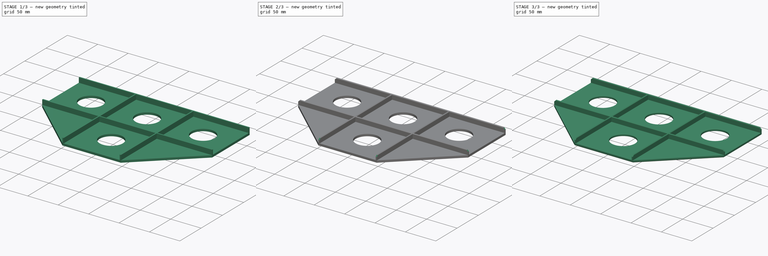
[diagram: build sequence overview — one tinted view per stage of 3, left to right]
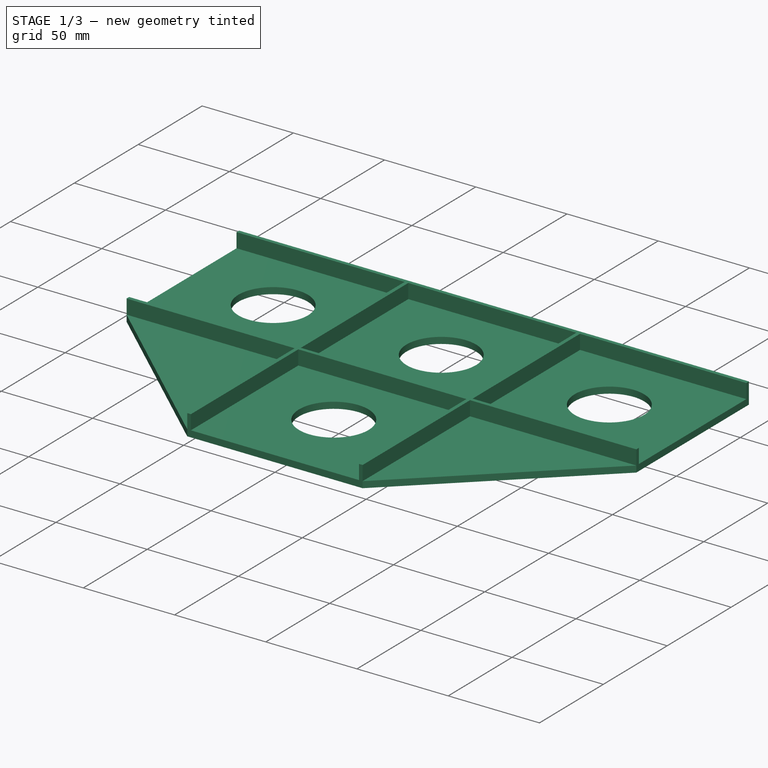
[diagram: stage 1 of 3 — iso view after this stage's code; geometry added in this stage tinted green]
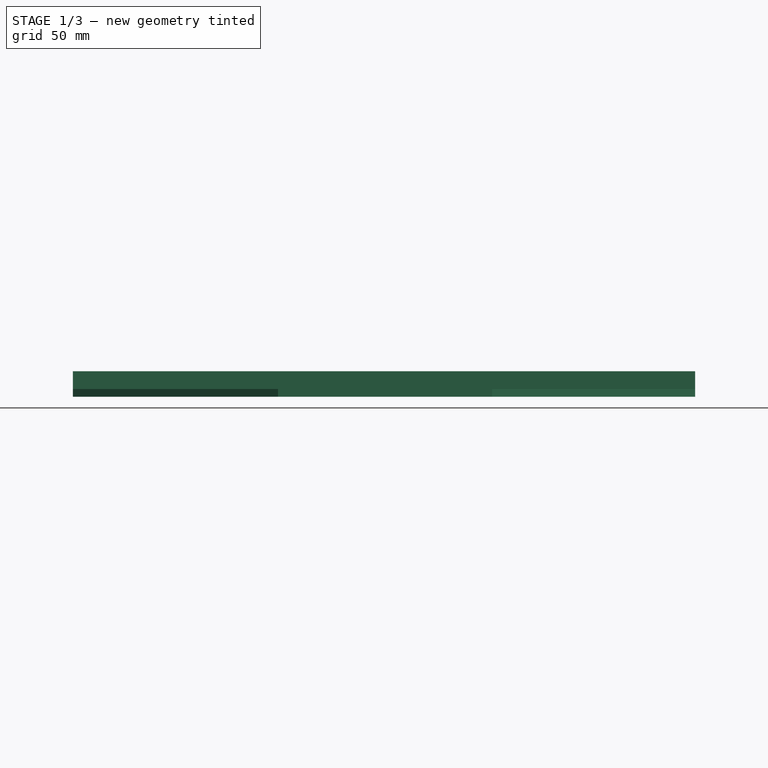
[diagram: stage 1 of 3 — front view after this stage's code; geometry added in this stage tinted green]
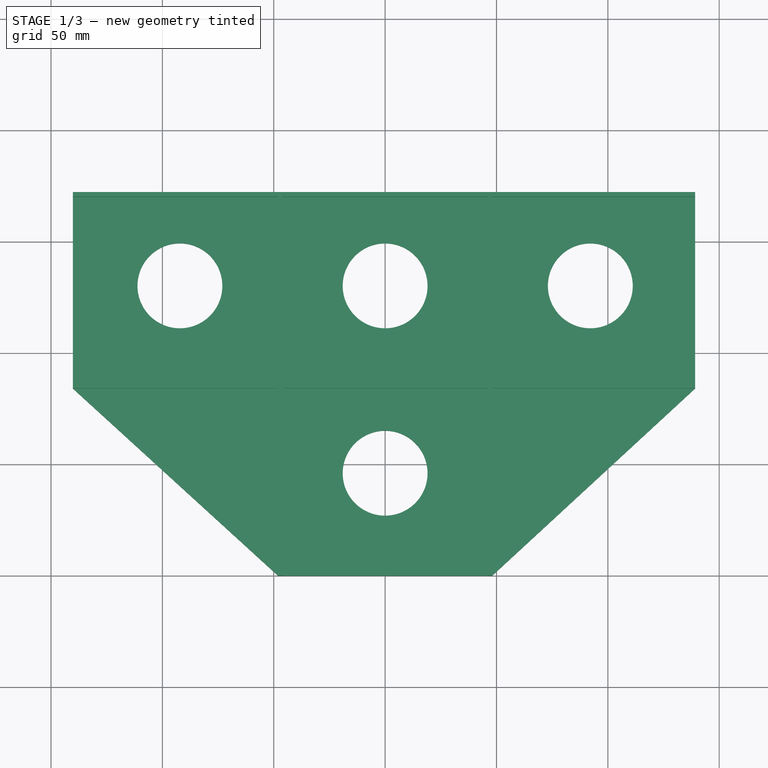
[diagram: stage 1 of 3 — top view after this stage's code; geometry added in this stage tinted green]
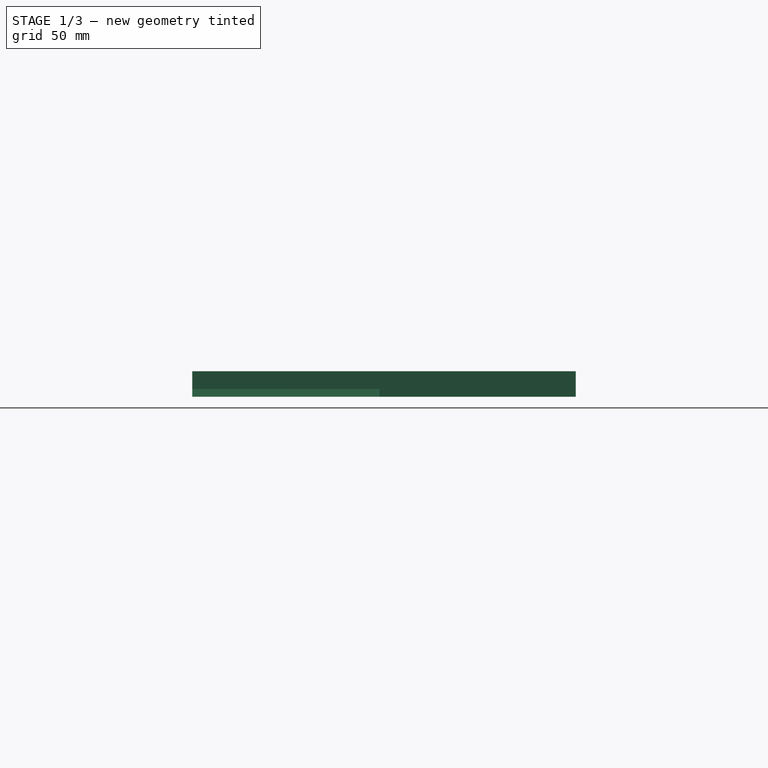
[diagram: stage 1 of 3 — right view after this stage's code; geometry added in this stage tinted green]
FCSTD DOCUMENT  (FreeCAD 0.21R33771 (Git))
Label: LasagnaGridv2
License: All rights reserved
LicenseURL: http://en.wikipedia.org/wiki/All_rights_reserved
objects: PartDesign::Chamfer×3, Sketcher::SketchObject×2, PartDesign::Pad×2, Spreadsheet::Sheet×1, PartDesign::Fillet×1, PartDesign::Body×1, App::Part×1
note: 15 computed .brp shape members not serialized (recipe doc carries the construction recipe); baked Part::Feature solids carry a one-line shape summary decoded from their .brp

FEATURE [Spreadsheet::Sheet] Spreadsheet  label="p"
FEATURE [Sketcher::SketchObject] Sketch001
  FullyConstrained = true
  MapMode = 5
  Support = -> [XY_Plane001]
  sketch-geometry (16):
    g0: LineSegment StartX=139.2 StartY=86.09 StartZ=0 EndX=139.2 EndY=84.09 EndZ=0
    g1: LineSegment StartX=48.0667 StartY=-7e-16 StartZ=0 EndX=46.0667 EndY=-7e-16 EndZ=0
    g2: LineSegment StartX=-46.0667 StartY=0 StartZ=0 EndX=-48.0667 EndY=0 EndZ=0
    g3: LineSegment StartX=-140.2 StartY=84.09 StartZ=0 EndX=-140.2 EndY=86.09 EndZ=0
    g4: LineSegment StartX=-140.2 StartY=170.18 StartZ=0 EndX=-140.2 EndY=172.18 EndZ=0
    g5: LineSegment StartX=-140.2 StartY=172.18 StartZ=0 EndX=139.2 EndY=172.18 EndZ=0
    g6: LineSegment StartX=139.2 StartY=172.18 StartZ=0 EndX=139.2 EndY=170.18 EndZ=0
    g7: LineSegment StartX=-140.2 StartY=170.18 StartZ=0 EndX=-140.2 EndY=86.09 EndZ=0
    g8: LineSegment StartX=-140.2 StartY=84.09 StartZ=0 EndX=-48.0667 EndY=0 EndZ=0
    g9: LineSegment StartX=-46.0667 StartY=0 StartZ=0 EndX=46.0667 EndY=-7e-16 EndZ=0
    g10: LineSegment StartX=48.0667 StartY=-7e-16 StartZ=0 EndX=139.2 EndY=84.09 EndZ=0
    g11: LineSegment StartX=139.2 StartY=86.09 StartZ=0 EndX=139.2 EndY=170.18 EndZ=0
    g12: Circle CenterX=-92.134 CenterY=130.201 CenterZ=0 NormalX=0 NormalY=0 NormalZ=1 AngleXU=0 Radius=19.05
    g13: Circle CenterX=92.134 CenterY=130.201 CenterZ=0 NormalX=0 NormalY=0 NormalZ=1 AngleXU=0 Radius=19.05
    g14: Circle CenterX=0 CenterY=130.201 CenterZ=0 NormalX=0 NormalY=0 NormalZ=1 AngleXU=0 Radius=19.05
    g15: Circle CenterX=0 CenterY=46.067 CenterZ=0 NormalX=0 NormalY=0 NormalZ=1 AngleXU=0 Radius=19.05
  constraints (48):
    c: Vertical(g0)
    c: Horizontal(g1)
    c: Horizontal(g2)
    c: Vertical(g3)
    c: DistanceX(g3,g0) = 279.4
    c: DistanceY(g3,g3) = 2
    c: DistanceY(g0,g0) = 2
    c: DistanceX(g2,g2) = 2
    c: DistanceX(g1,g1) = 2
    c: DistanceY(g2,g3) = 84.09
    c: DistanceY(g2,g-1) = 0
    c: DistanceX(g3,g2) = 92.1333
    c: DistanceX(g2,g-1) = 46.0667
    c: DistanceX(g-1,g1) = 46.0667
    c: Vertical(g4)
    c: Coincident(g4,g5)
    c: Horizontal(g5)
    c: Coincident(g5,g6)
    c: Vertical(g6)
    c: DistanceX(g5,g5) = 279.4
    c: DistanceY(g4,g4) = 2
    c: DistanceY(g6,g6) = 2
    c: DistanceX(g3,g4) = 0
    c: Coincident(g7,g4)
    c: Coincident(g7,g3)
    c: Coincident(g8,g3)
    c: Coincident(g8,g2)
    c: Coincident(g9,g2)
    c: Coincident(g9,g1)
    c: Coincident(g10,g1)
    c: Coincident(g10,g0)
    c: Coincident(g11,g0)
    c: Coincident(g11,g6)
    c: DistanceY(g11,g11) = 84.09
    c: DistanceY(g1,g-1) = 0
    c: DistanceY(g-1,g4) = 172.18
    c: PointOnObject(g14,g-2)
    c: PointOnObject(g15,g-2)
    c: Equal(g14,g15)
    c: Equal(g14,g13)
    c: Equal(g14,g12)
    c: Diameter(g14) = 38.1
    c: DistanceY(g12,g14) = 0
    c: DistanceY(g13,g14) = 0
    c: DistanceX(g12,g14) = 92.134
    c: DistanceX(g14,g13) = 92.134
    c: DistanceY(g-1,g15) = 46.067
    c: DistanceY(g15,g14) = 84.134
FEATURE [PartDesign::Pad] Pad
  Direction = (0,0,1)
  Length = 3.5
  Length2 = 10
  Profile = -> Sketch001
  ReferenceAxis = -> Sketch001 [N_Axis]
  Type = 0
FEATURE [Sketcher::SketchObject] Sketch
  FullyConstrained = true
  MapMode = 5
  Placement = pos=(0,0,3.5) rot=(0,0,1;0rad)
  Support = -> [Pad]
  sketch-geometry (24):
    g0: LineSegment StartX=-140.2 StartY=86.09 StartZ=0 EndX=-48.0666 EndY=86.09 EndZ=0
    g1: LineSegment StartX=139.2 StartY=86.09 StartZ=0 EndX=139.2 EndY=84.09 EndZ=0
    g2: LineSegment StartX=139.2 StartY=84.09 StartZ=0 EndX=48.0667 EndY=84.09 EndZ=0
    g3: LineSegment StartX=48.0667 StartY=84.09 StartZ=0 EndX=48.0667 EndY=0 EndZ=0
    g4: LineSegment StartX=48.0667 StartY=0 StartZ=0 EndX=46.0667 EndY=0 EndZ=0
    g5: LineSegment StartX=46.0667 StartY=0 StartZ=0 EndX=46.0667 EndY=84.09 EndZ=0
    g6: LineSegment StartX=46.0667 StartY=84.09 StartZ=0 EndX=-46.0667 EndY=84.09 EndZ=0
    g7: LineSegment StartX=-46.0667 StartY=84.09 StartZ=0 EndX=-46.0667 EndY=0 EndZ=0
    g8: LineSegment StartX=-46.0667 StartY=0 StartZ=0 EndX=-48.0667 EndY=0 EndZ=0
    g9: LineSegment StartX=-48.0667 StartY=0 StartZ=0 EndX=-48.0667 EndY=84.09 EndZ=0
    g10: LineSegment StartX=-48.0667 StartY=84.09 StartZ=0 EndX=-140.2 EndY=84.09 EndZ=0
    g11: LineSegment StartX=-140.2 StartY=84.09 StartZ=0 EndX=-140.2 EndY=86.09 EndZ=0
    g12: LineSegment StartX=-48.0666 StartY=86.09 StartZ=0 EndX=-48.0666 EndY=170.18 EndZ=0
    g13: LineSegment StartX=-48.0666 StartY=170.18 StartZ=0 EndX=-140.2 EndY=170.18 EndZ=0
    g14: LineSegment StartX=-140.2 StartY=170.18 StartZ=0 EndX=-140.2 EndY=172.18 EndZ=0
    g15: LineSegment StartX=-140.2 StartY=172.18 StartZ=0 EndX=139.2 EndY=172.18 EndZ=0
    g16: LineSegment StartX=139.2 StartY=172.18 StartZ=0 EndX=139.2 EndY=170.18 EndZ=0
    g17: LineSegment StartX=139.2 StartY=170.18 StartZ=0 EndX=48.0667 EndY=170.18 EndZ=0
    g18: LineSegment StartX=48.0667 StartY=170.18 StartZ=0 EndX=48.0667 EndY=86.09 EndZ=0
    g19: LineSegment StartX=-46.0667 StartY=170.18 StartZ=0 EndX=-46.0667 EndY=86.09 EndZ=0
    g20: LineSegment StartX=48.0667 StartY=86.09 StartZ=0 EndX=139.2 EndY=86.09 EndZ=0
    g21: LineSegment StartX=-46.0667 StartY=86.09 StartZ=0 EndX=46.0667 EndY=86.09 EndZ=0
    g22: LineSegment StartX=46.0667 StartY=86.09 StartZ=0 EndX=46.0667 EndY=170.18 EndZ=0
    g23: LineSegment StartX=46.0667 StartY=170.18 StartZ=0 EndX=-46.0667 EndY=170.18 EndZ=0
  constraints (72):
    c: Horizontal(g0)
    c: Coincident(g20,g1)
    c: Vertical(g1)
    c: Coincident(g1,g2)
    c: Horizontal(g2)
    c: Coincident(g2,g3)
    c: Vertical(g3)
    c: Horizontal(g4)
    c: Coincident(g4,g5)
    c: Vertical(g5)
    c: Coincident(g5,g6)
    c: Horizontal(g6)
    c: Coincident(g6,g7)
    c: Vertical(g7)
    c: Coincident(g7,g8)
    c: Horizontal(g8)
    c: Coincident(g8,g9)
    c: Vertical(g9)
    c: Coincident(g9,g10)
    c: Horizontal(g10)
    c: Coincident(g10,g11)
    c: Coincident(g11,g0)
    c: Vertical(g11)
    c: DistanceX(g0,g20) = 279.4
    c: DistanceY(g11,g11) = 2
    c: DistanceY(g1,g1) = 2
    c: DistanceY(g6,g0) = 2
    c: DistanceX(g8,g8) = 2
    c: DistanceX(g4,g4) = 2
    c: DistanceY(g8,g10) = 84.09
    c: DistanceY(g4,g5) = 84.09
    c: DistanceY(g7,g-1) = 0
    c: Coincident(g4,g3)
    c: DistanceX(g10,g8) = 92.1333
    c: DistanceX(g7,g-1) = 46.0667
    c: DistanceX(g-1,g4) = 46.0667
    c: Vertical(g12)
    c: Coincident(g12,g13)
    c: Horizontal(g13)
    c: Coincident(g13,g14)
    c: Vertical(g14)
    c: Coincident(g14,g15)
    c: Horizontal(g15)
    c: Coincident(g15,g16)
    c: Vertical(g16)
    c: Coincident(g16,g17)
    c: Horizontal(g17)
    c: Coincident(g17,g18)
    c: PointOnObject(g18,g0)
    c: Vertical(g18)
    c: Vertical(g19)
    c: Coincident(g0,g12)
    c: DistanceX(g15,g15) = 279.4
    c: DistanceX(g0,g0) = 92.1333
    c: DistanceX(g19,g-1) = 46.0667
    c: DistanceY(g14,g14) = 2
    c: DistanceY(g19,g12) = 0
    c: DistanceY(g16,g16) = 2
    c: DistanceY(g3,g3) = 84.09
    c: DistanceY(g19,g19) = 84.09
    c: Coincident(g20,g18)
    c: Coincident(g19,g21)
    c: Horizontal(g21)
    c: Coincident(g21,g22)
    c: Vertical(g22)
    c: Coincident(g22,g23)
    c: Coincident(g23,g19)
    c: Horizontal(g23)
    c: DistanceY(g6,g19) = 2
    c: DistanceX(g22,g17) = 2
    c: DistanceX(g-1,g21) = 46.0667
    c: DistanceX(g0,g13) = 0
FEATURE [PartDesign::Pad] Pad001
  BaseFeature = -> Pad
  Direction = (0,0,1)
  Length = 8
  Length2 = 10
  Profile = -> Sketch
  ReferenceAxis = -> Sketch [N_Axis]
  Type = 0
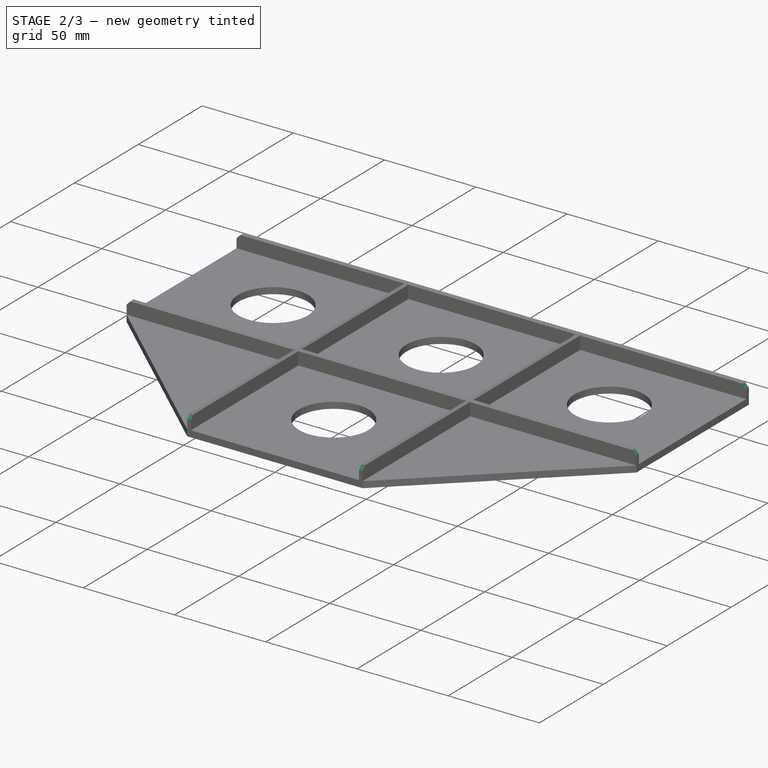
[diagram: stage 2 of 3 — iso view after this stage's code; geometry added in this stage tinted green]
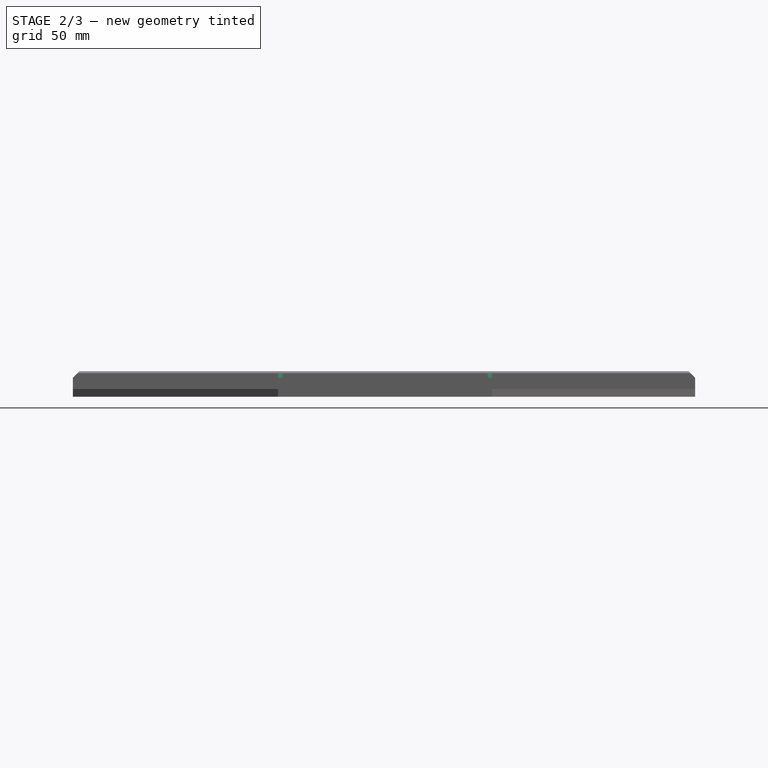
[diagram: stage 2 of 3 — front view after this stage's code; geometry added in this stage tinted green]
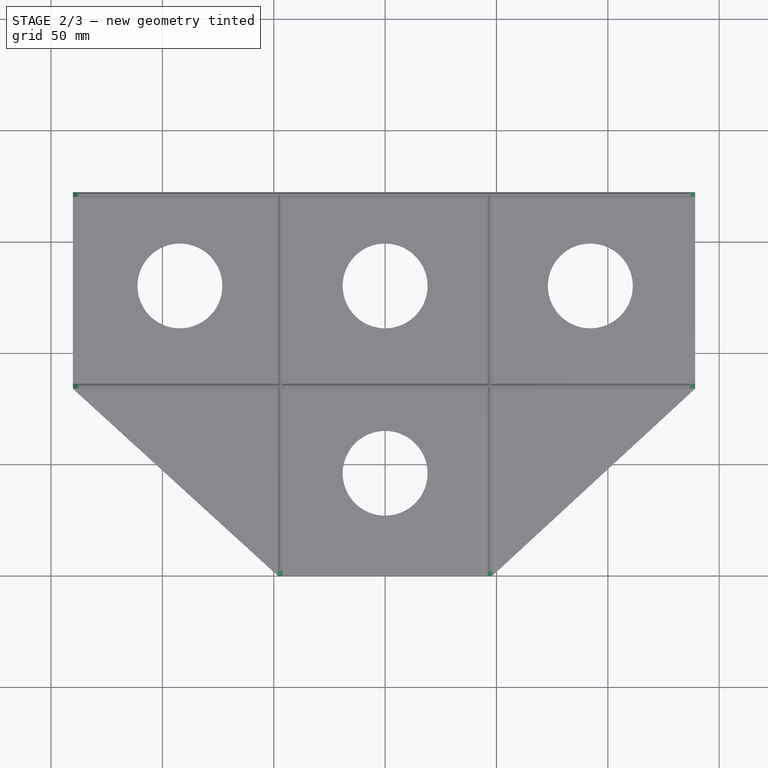
[diagram: stage 2 of 3 — top view after this stage's code; geometry added in this stage tinted green]
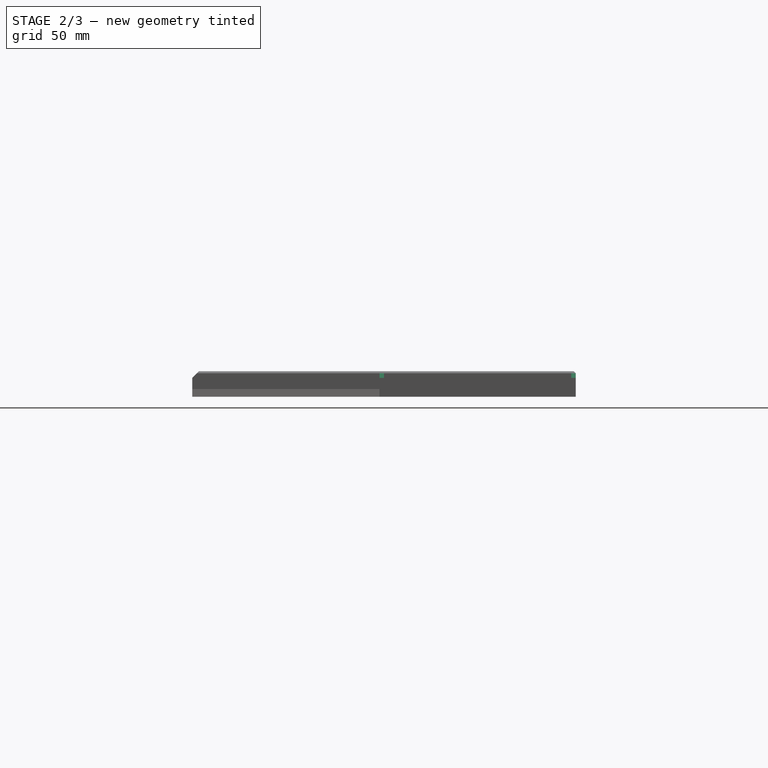
[diagram: stage 2 of 3 — right view after this stage's code; geometry added in this stage tinted green]
FEATURE [PartDesign::Chamfer] Chamfer
  Angle = 45
  Base = -> Pad001 [Edge69,Edge71,Edge60,Edge58,Edge68,Edge80,Edge79,Edge72,Edge73,Edge75,Edge76,Edge61,Edge62,Edge78,Edge67,Edge65,Edge81,Edge63]
  BaseFeature = -> Pad001
  ChamferType = 0
  FlipDirection = false
  Size = 0.9
  Size2 = 1
  SupportTransform = false
  UseAllEdges = false
FEATURE [PartDesign::Chamfer] Chamfer001
  Angle = 45
  Base = -> Chamfer [Edge15,Edge22,Edge26,Edge31,Edge4,Edge19]
  BaseFeature = -> Chamfer
  ChamferType = 0
  FlipDirection = false
  Size = 3
  Size2 = 1
  SupportTransform = false
  UseAllEdges = false
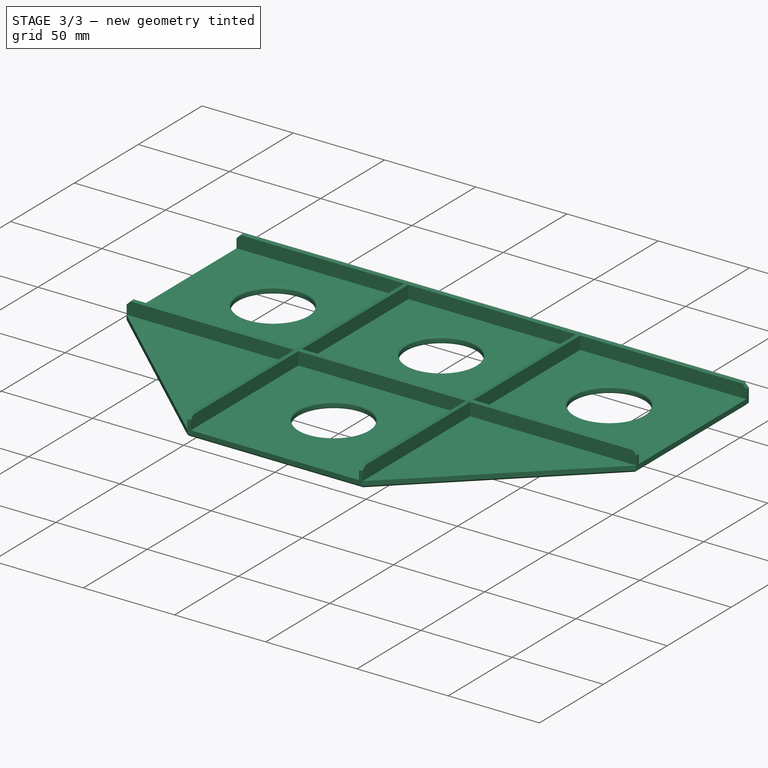
[diagram: stage 3 of 3 — iso view after this stage's code; geometry added in this stage tinted green]
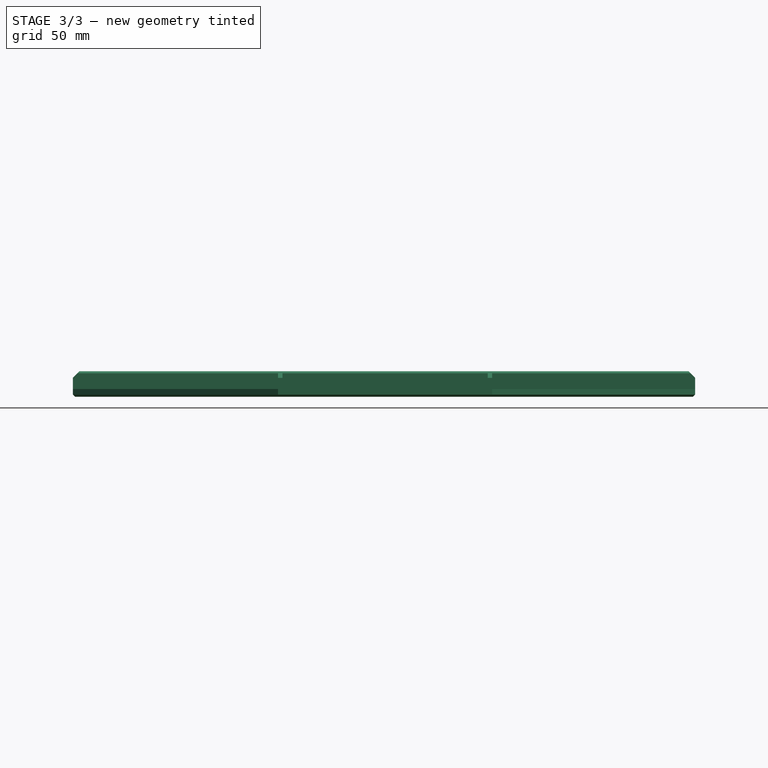
[diagram: stage 3 of 3 — front view after this stage's code; geometry added in this stage tinted green]
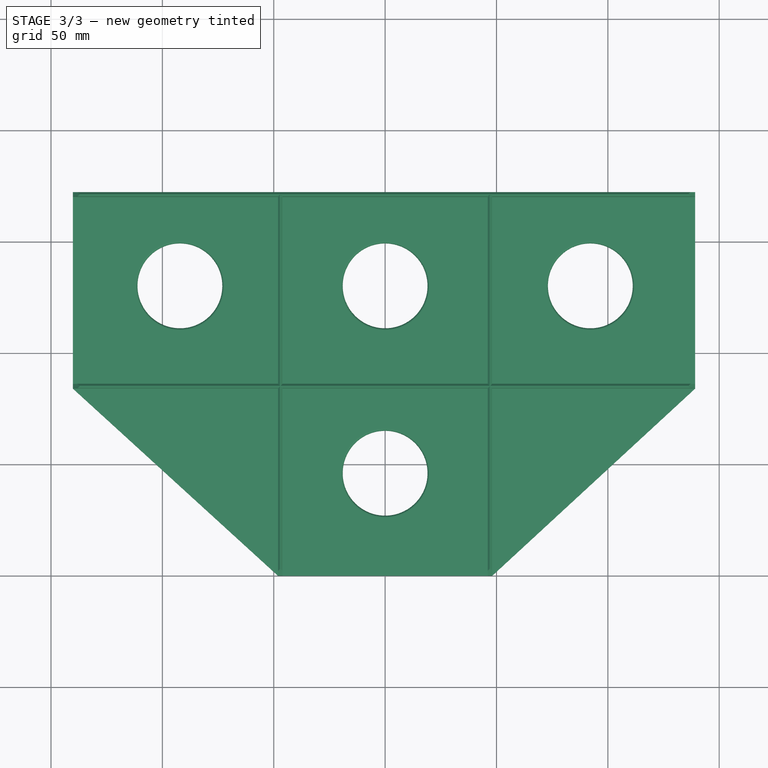
[diagram: stage 3 of 3 — top view after this stage's code; geometry added in this stage tinted green]
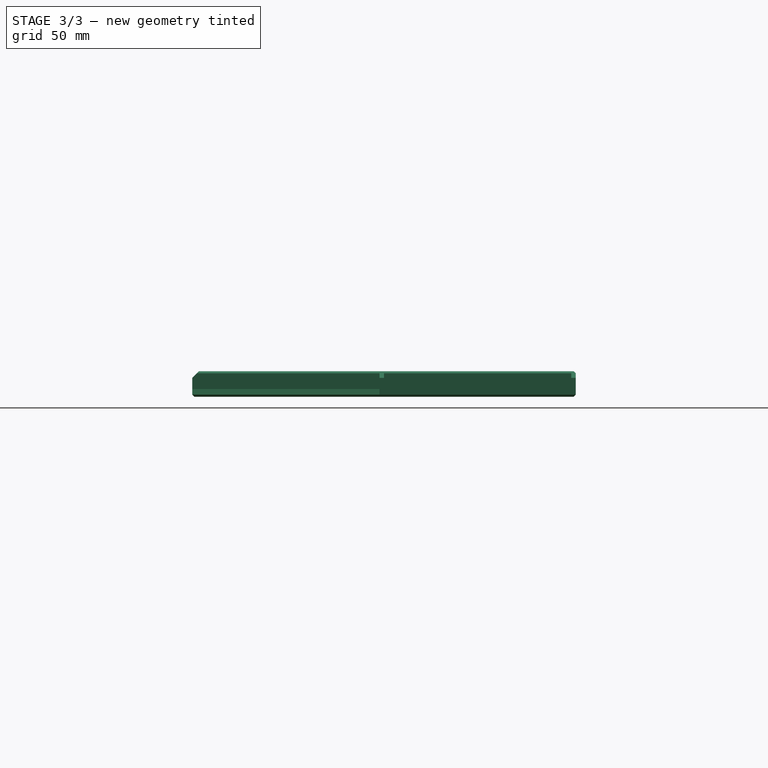
[diagram: stage 3 of 3 — right view after this stage's code; geometry added in this stage tinted green]
FEATURE [PartDesign::Fillet] Fillet
  Base = -> Chamfer001 [Edge67,Edge144,Edge65,Edge142,Edge64,Edge140,Edge66,Edge26]
  BaseFeature = -> Chamfer001
  Radius = 1
  SupportTransform = false
  UseAllEdges = false
FEATURE [PartDesign::Chamfer] Chamfer002
  Angle = 45
  Base = -> Fillet [Edge48,Edge50,Edge49,Edge47,Edge46,Edge52,Edge53,Edge54,Edge44,Edge19,Edge42]
  BaseFeature = -> Fillet
  ChamferType = 0
  FlipDirection = false
  Size = 1
  Size2 = 1
  SupportTransform = false
  UseAllEdges = false
FEATURE [PartDesign::Body] Body  label="CutterBody"
  Group = -> [Sketch,Sketch001,Pad,Pad001,Chamfer,Chamfer001,Fillet,Chamfer002]
  Origin = -> Origin001
  Tip = -> Chamfer002
FEATURE [App::Part] Part  label="CutterPart"
  Group = -> [Body]
  Origin = -> Origin
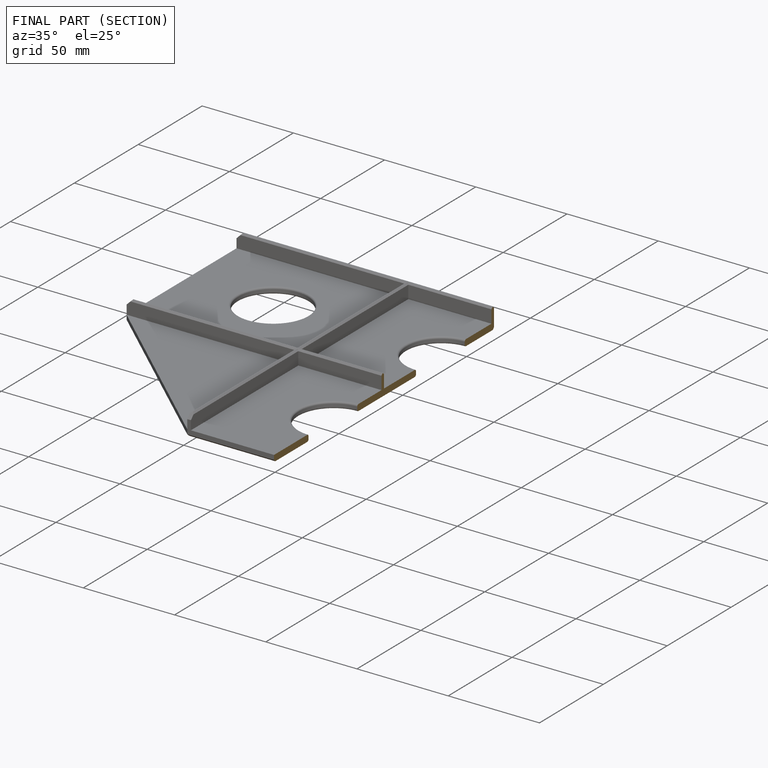
[diagram: finished part — half-section view (interior)]
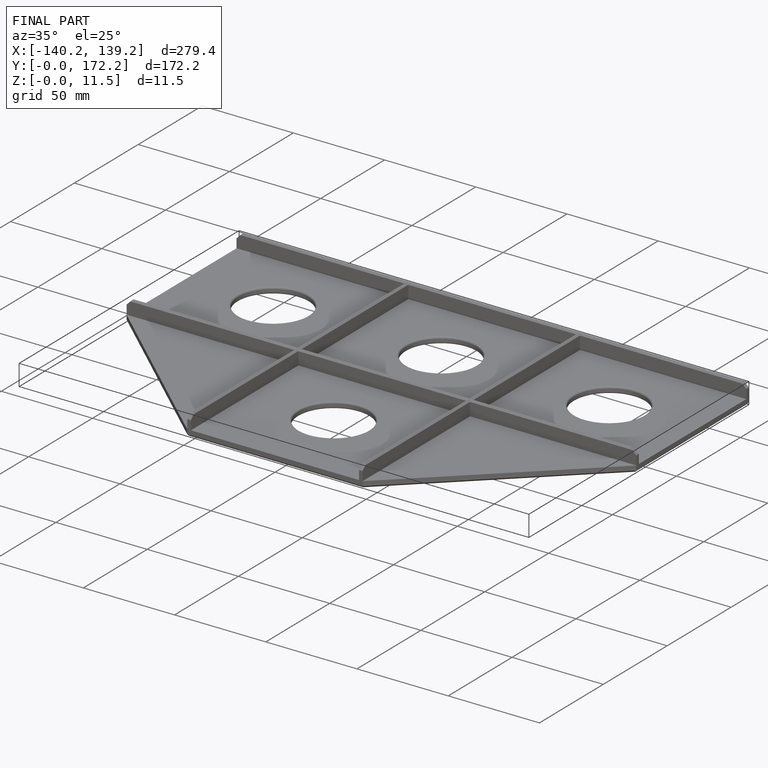
[diagram: finished part — iso view with bounding-box wireframe]
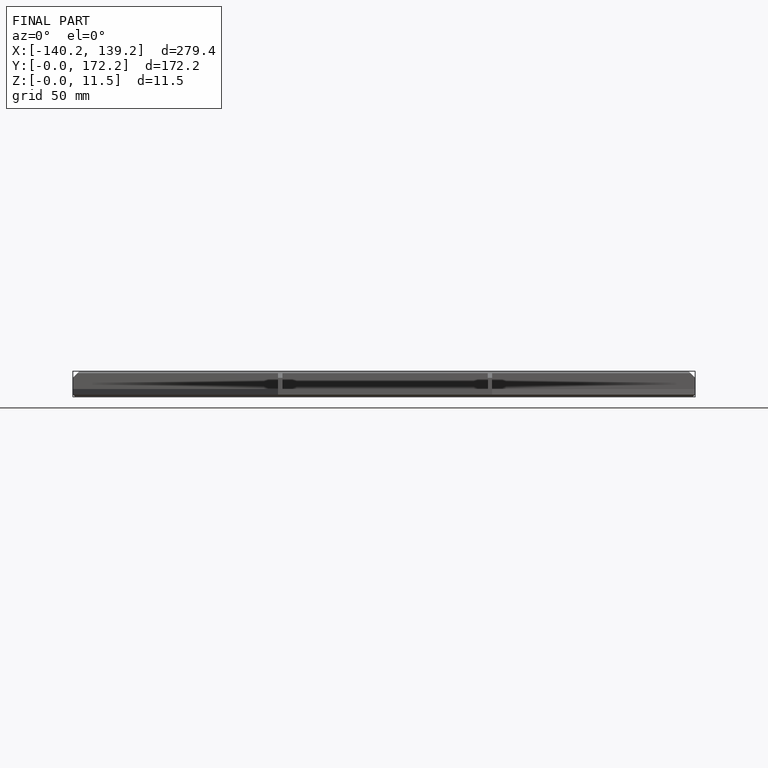
[diagram: finished part — front view with bounding-box wireframe]
